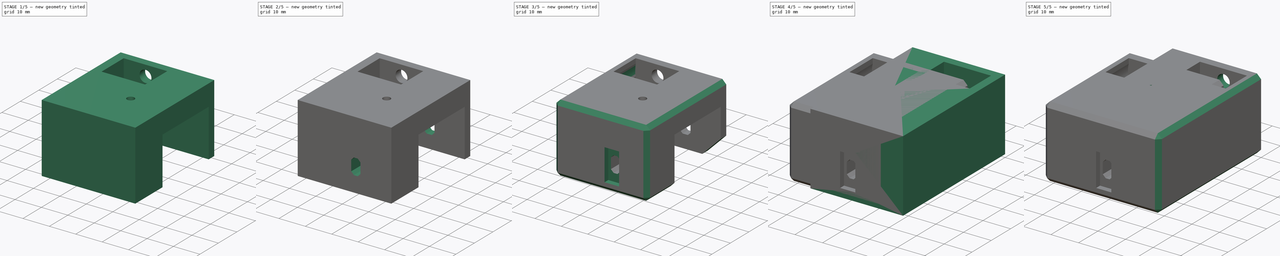
[diagram: build sequence overview — one tinted view per stage of 5, left to right]
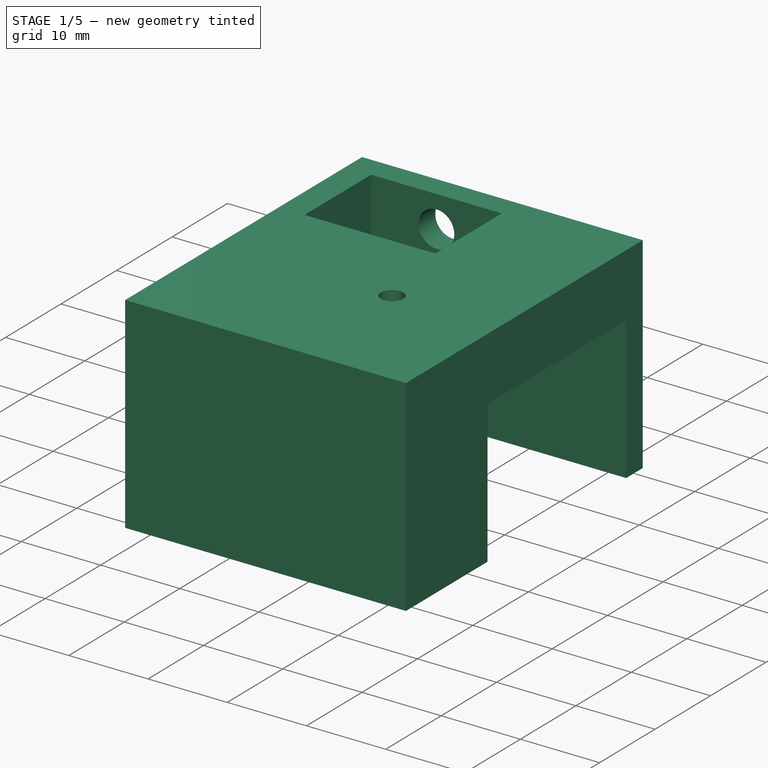
[diagram: stage 1 of 5 — iso view after this stage's code; geometry added in this stage tinted green]
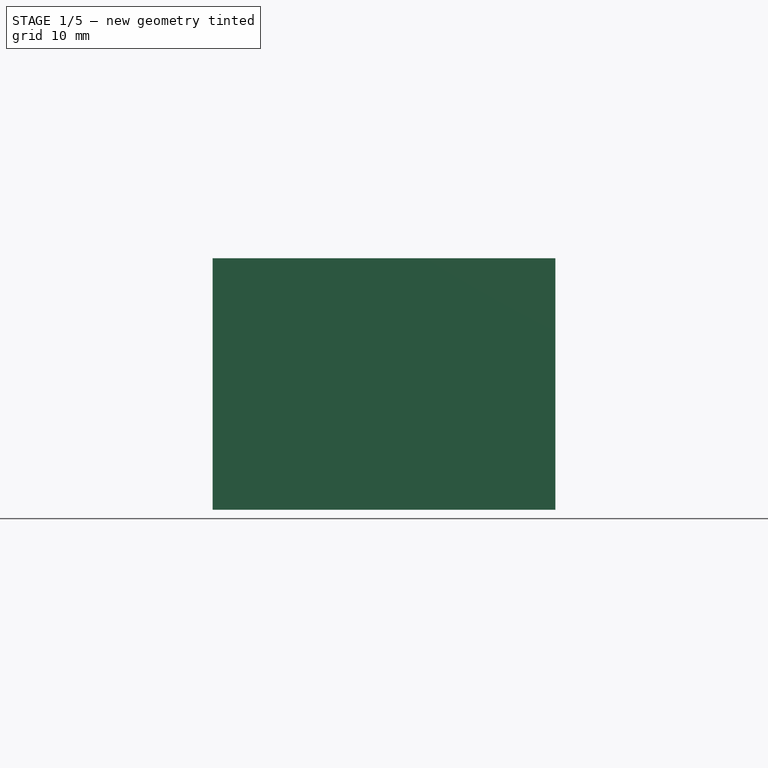
[diagram: stage 1 of 5 — front view after this stage's code; geometry added in this stage tinted green]
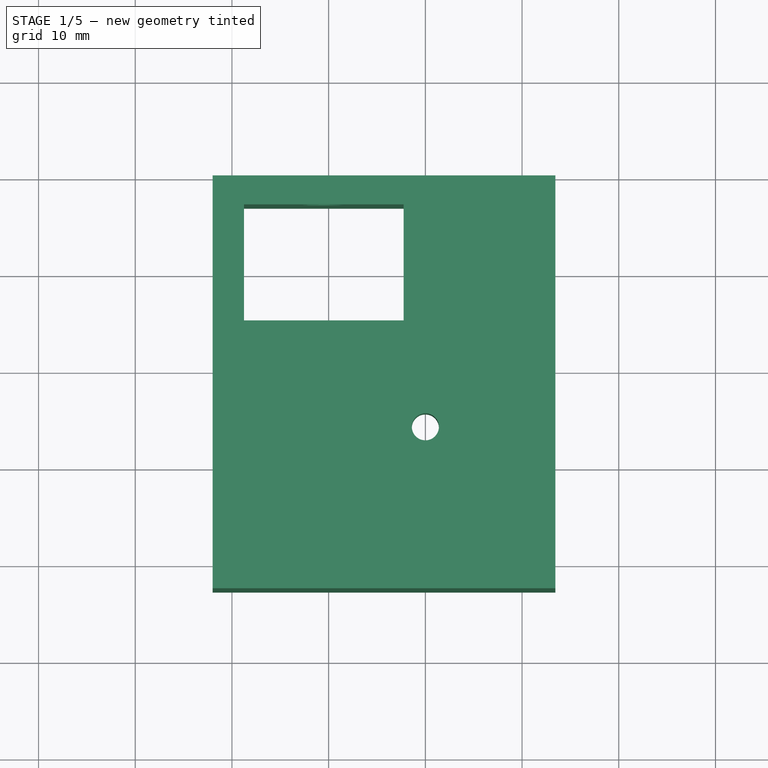
[diagram: stage 1 of 5 — top view after this stage's code; geometry added in this stage tinted green]
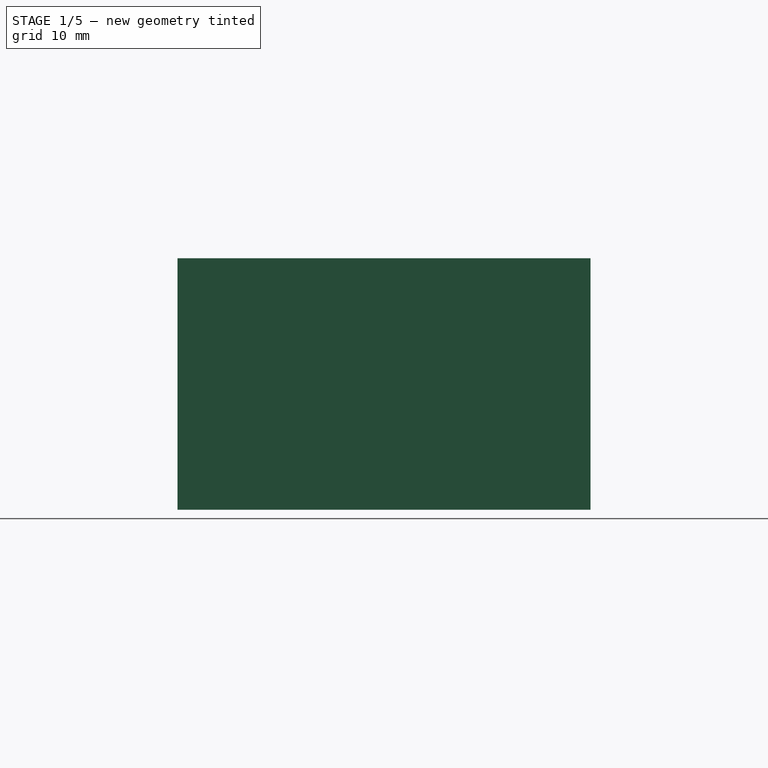
[diagram: stage 1 of 5 — right view after this stage's code; geometry added in this stage tinted green]
FCSTD DOCUMENT  (FreeCAD 0.19R)
Label: Tensioner_printed
License: All rights reserved
LicenseURL: http://en.wikipedia.org/wiki/All_rights_reserved
objects: Sketcher::SketchObject×27, PartDesign::Pocket×19, PartDesign::Pad×6, PartDesign::Chamfer×4, PartDesign::Body×2
note: 87 computed .brp shape members not serialized (recipe doc carries the construction recipe); baked Part::Feature solids carry a one-line shape summary decoded from their .brp

FEATURE [Sketcher::SketchObject] Sketch007  label="slots"
  FullyConstrained = true
  MapMode = 5
  Placement = pos=(0,40,0) rot=(0,0.707107,0.707107;3.14159rad)
  Support = -> [Pocket002]
  sketch-geometry (8):
    g0: LineSegment StartX=-1.75 StartY=-14 StartZ=0 EndX=-1.75 EndY=-19 EndZ=0
    g1: LineSegment StartX=1.75 StartY=-14 StartZ=0 EndX=1.75 EndY=-19 EndZ=0
    g2: LineSegment StartX=-1.75 StartY=-14 StartZ=0 EndX=-0.724874 EndY=-12.9749 EndZ=0
    g3: LineSegment StartX=-0.724874 StartY=-12.9749 StartZ=0 EndX=0.724874 EndY=-12.9749 EndZ=0
    g4: LineSegment StartX=0.724874 StartY=-12.9749 StartZ=0 EndX=1.75 EndY=-14 EndZ=0
    g5: LineSegment StartX=-1.75 StartY=-19 StartZ=0 EndX=-0.724874 EndY=-20.0251 EndZ=0
    g6: LineSegment StartX=-0.724874 StartY=-20.0251 StartZ=0 EndX=0.724874 EndY=-20.0251 EndZ=0
    g7: LineSegment StartX=0.724874 StartY=-20.0251 StartZ=0 EndX=1.75 EndY=-19 EndZ=0
  constraints (20):
    c: Vertical(g0)
    c: Coincident(g0,g2)
    c: Coincident(g2,g3)
    c: Coincident(g3,g4)
    c: Coincident(g4,g1)
    c: Coincident(g0,g5)
    c: Coincident(g5,g6)
    c: Coincident(g6,g7)
    c: Coincident(g7,g1)
    c: Equal(g2,g3)
    c: Equal(g4,g7)
    c: Equal(g7,g6)
    c: Symmetric(g1,g0,g-2)
    c: Symmetric(g3,g2,g-2)
    c: Symmetric(g0,g1,g-2)
    c: Symmetric(g6,g5,g-2)
    c: Distance(g1,g0) = 3.5
    c: Angle(g7) = 0.785398
    c: Distance(g1) = 5
    c: DistanceY(g1) = -14
FEATURE [Sketcher::SketchObject] Sketch008  label="pulleyWindown001"
  FullyConstrained = false
  MapMode = 5
  sketch-geometry (5):
    g0: LineSegment StartX=-18.75 StartY=27 StartZ=0 EndX=-2.25 EndY=27 EndZ=0
    g1: LineSegment StartX=-2.25 StartY=27 StartZ=0 EndX=-2.25 EndY=15 EndZ=0
    g2: LineSegment StartX=-2.25 StartY=15 StartZ=0 EndX=-18.75 EndY=15 EndZ=0
    g3: LineSegment StartX=-18.75 StartY=15 StartZ=0 EndX=-18.75 EndY=27 EndZ=0
    g4: LineSegment StartX=-10.5 StartY=41.4964 StartZ=0 EndX=-10.5 EndY=23.186 EndZ=0
  constraints (13):
    c: Coincident(g0,g1)
    c: Coincident(g1,g2)
    c: Coincident(g2,g3)
    c: Coincident(g3,g0)
    c: Horizontal(g0)
    c: Horizontal(g2)
    c: Vertical(g1)
    c: Vertical(g3)
    c: Distance(g0) = 16.5
    c: Distance(g1) = 12
    c: Symmetric(g0,g0,g4)
    c: DistanceY(g1) = 15
    c: DistanceX(g-2,g4) = -10.5
FEATURE [Sketcher::SketchObject] Sketch009
  FullyConstrained = false
  MapMode = 5
  Support = -> [XY_Plane002]
  sketch-geometry (26):
    g0: LineSegment StartX=-13.5 StartY=0 StartZ=0 EndX=13.5 EndY=0 EndZ=0
    g1: LineSegment StartX=13.5 StartY=0 StartZ=0 EndX=13.5 EndY=-12.7 EndZ=0
    g2: LineSegment StartX=13.5 StartY=-12.7 StartZ=0 EndX=-13.5 EndY=-12.7 EndZ=0
    g3: LineSegment StartX=-13.5 StartY=-12.7 StartZ=0 EndX=-13.5 EndY=0 EndZ=0
    g4: LineSegment StartX=-6 StartY=8 StartZ=0 EndX=6 EndY=8 EndZ=0
    g5: LineSegment StartX=6 StartY=8 StartZ=0 EndX=6 EndY=0 EndZ=0
    g6: LineSegment StartX=6 StartY=0 StartZ=0 EndX=-6 EndY=0 EndZ=0
    g7: LineSegment StartX=-6 StartY=0 StartZ=0 EndX=-6 EndY=8 EndZ=0
    g8: LineSegment StartX=-13.5 StartY=13 StartZ=0 EndX=13.5 EndY=13 EndZ=0
    g9: LineSegment StartX=13.5 StartY=13 StartZ=0 EndX=13.5 EndY=3 EndZ=0
    g10: LineSegment StartX=-13.5 StartY=3 StartZ=0 EndX=-13.5 EndY=13 EndZ=0
    g11: LineSegment StartX=13.5 StartY=3 StartZ=0 EndX=6 EndY=3 EndZ=0
    g12: LineSegment StartX=6 StartY=3 StartZ=0 EndX=6 EndY=8 EndZ=0
    g13: LineSegment StartX=6 StartY=8 StartZ=0 EndX=-6 EndY=8 EndZ=0
    g14: LineSegment StartX=-6 StartY=8 StartZ=0 EndX=-6 EndY=3 EndZ=0
    g15: LineSegment StartX=-6 StartY=3 StartZ=0 EndX=-13.5 EndY=3 EndZ=0
    g16: LineSegment StartX=-6 StartY=8 StartZ=0 EndX=6 EndY=8 EndZ=0
    g17: LineSegment StartX=-15.5 StartY=26 StartZ=0 EndX=15.5 EndY=26 EndZ=0
    g18: LineSegment StartX=15.5 StartY=26 StartZ=0 EndX=15.5 EndY=13 EndZ=0
    g19: LineSegment StartX=15.5 StartY=13 StartZ=0 EndX=-15.5 EndY=13 EndZ=0
    g20: LineSegment StartX=-15.5 StartY=13 StartZ=0 EndX=-15.5 EndY=26 EndZ=0
    g21: LineSegment StartX=-17.85 StartY=25.5 StartZ=0 EndX=-4.15 EndY=25.5 EndZ=0
    g22: LineSegment StartX=-4.15 StartY=25.5 StartZ=0 EndX=-4.15 EndY=18.5 EndZ=0
    g23: LineSegment StartX=-4.15 StartY=18.5 StartZ=0 EndX=-17.85 EndY=18.5 EndZ=0
    g24: LineSegment StartX=-17.85 StartY=18.5 StartZ=0 EndX=-17.85 EndY=25.5 EndZ=0
    g25: LineSegment StartX=-11 StartY=34.6127 StartZ=0 EndX=-11 EndY=22.2988 EndZ=0
  constraints (69):
    c: Coincident(g0,g1)
    c: Coincident(g1,g2)
    c: Coincident(g2,g3)
    c: Coincident(g3,g0)
    c: Horizontal(g2)
    c: Vertical(g1)
    c: Vertical(g3)
    c: Symmetric(g0,g0,g-2)
    c: Distance(g0) = 27
    c: Distance(g1) = 12.7
    c: PointOnObject(g0,g-1)
    c: Coincident(g4,g5)
    c: Coincident(g5,g6)
    c: Coincident(g6,g7)
    c: Coincident(g7,g4)
    c: Horizontal(g6)
    c: Vertical(g5)
    c: Vertical(g7)
    c: Distance(g4) = 12
    c: Symmetric(g4,g4,g-2)
    c: PointOnObject(g5,g0)
    c: Distance(g5) = 8
    c: Coincident(g8,g9)
    c: Coincident(g10,g8)
    c: Vertical(g9)
    c: Vertical(g10)
    c: Distance(g8) = 27
    c: Symmetric(g8,g8,g-2)
    c: Coincident(g9,g11)
    c: Horizontal(g11)
    c: Coincident(g11,g12)
    c: Coincident(g12,g4)
    c: Coincident(g12,g13)
    c: Coincident(g13,g4)
    c: Coincident(g13,g14)
    c: Vertical(g14)
    c: Coincident(g14,g15)
    c: Coincident(g10,g15)
    c: Vertical(g12)
    c: Horizontal(g15)
    c: Distance(g9) = 10
    c: Equal(g10,g9)
    c: Horizontal(g16)
    c: Coincident(g16,g4)
    c: Coincident(g17,g18)
    c: Coincident(g18,g19)
    c: Coincident(g19,g20)
    c: Coincident(g20,g17)
    c: Horizontal(g19)
    c: Vertical(g18)
    c: Vertical(g20)
    c: Distance(g17) = 31
    c: Distance(g18) = 13
    c: PointOnObject(g8,g19)
    c: Symmetric(g17,g17,g-2)
    c: Coincident(g21,g22)
    c: Coincident(g22,g23)
    c: Coincident(g23,g24)
    c: Coincident(g24,g21)
    c: Horizontal(g21)
    c: Horizontal(g23)
    c: Vertical(g22)
    c: Vertical(g24)
    c: Distance(g21) = 13.7
    c: Symmetric(g21,g21,g25)
    c: Distance(g24) = 7
    c: Distance(g21,g17) = 0.5
    c: DistanceY(g-1,g8) = 13
    c: DistanceX(g25,g14) = 5
FEATURE [Sketcher::SketchObject] Sketch010  label="axle001"
  FullyConstrained = true
  MapMode = 5
  Placement = pos=(0,33,0) rot=(0,0.707107,0.707107;3.14159rad)
  sketch-geometry (1):
    g0: Circle CenterX=10.5 CenterY=-4 CenterZ=0 NormalX=0 NormalY=0 NormalZ=1 AngleXU=0 Radius=2.25
  constraints (3):
    c: Diameter(g0) = 4.5
    c: DistanceX(g0) = 10.5
    c: DistanceY(g0) = -4
FEATURE [Sketcher::SketchObject] Sketch011  label="jackscrews001"
  FullyConstrained = true
  MapMode = 5
  Placement = pos=(0,0,-10) rot=(1,0,0;3.14159rad)
  sketch-geometry (1):
    g0: Circle CenterX=0 CenterY=-4 CenterZ=0 NormalX=0 NormalY=0 NormalZ=1 AngleXU=0 Radius=1.4
  constraints (3):
    c: Diameter(g0) = 2.8
    c: PointOnObject(g0,g-2)
    c: DistanceY(g0) = -4
FEATURE [Sketcher::SketchObject] Sketch012
  FullyConstrained = false
  MapMode = 5
  Support = -> [XY_Plane002]
  sketch-geometry (4):
    g0: LineSegment StartX=-22 StartY=-12.7 StartZ=0 EndX=13.4449 EndY=-12.7 EndZ=0
    g1: LineSegment StartX=13.4449 StartY=-12.7 StartZ=0 EndX=13.4449 EndY=30 EndZ=0
    g2: LineSegment StartX=13.4449 StartY=30 StartZ=0 EndX=-22 EndY=30 EndZ=0
    g3: LineSegment StartX=-22 StartY=30 StartZ=0 EndX=-22 EndY=-12.7 EndZ=0
  constraints (11):
    c: Coincident(g0,g1)
    c: Coincident(g1,g2)
    c: Coincident(g2,g3)
    c: Coincident(g3,g0)
    c: Horizontal(g2)
    c: Vertical(g1)
    c: Vertical(g3)
    c: DistanceY(g1) = 30
    c: Horizontal(g0)
    c: DistanceY(g0) = -12.7
    c: DistanceX(g-2,g2) = -22
FEATURE [PartDesign::Pad] Pad001
  Direction = (1,1,1)
  Length = 26
  Length2 = 100
  Profile = -> Sketch012
  Reversed = true
  Type = 0
FEATURE [Sketcher::SketchObject] Sketch013  label="mainNotch001"
  FullyConstrained = false
  MapMode = 5
  Placement = pos=(0,0,-26) rot=(1,0,0;3.14159rad)
  Support = -> [Pad001]
  sketch-geometry (6):
    g0: LineSegment StartX=-19 StartY=-2 StartZ=0 EndX=19 EndY=-2 EndZ=0
    g1: LineSegment StartX=17 StartY=-27 StartZ=0 EndX=-19 EndY=-27 EndZ=0
    g2: LineSegment StartX=-19 StartY=-27 StartZ=0 EndX=-19 EndY=-2 EndZ=0
    g3: LineSegment StartX=19 StartY=-2 StartZ=0 EndX=19 EndY=-2 EndZ=0
    g4: LineSegment StartX=19 StartY=-2 StartZ=0 EndX=17 EndY=-2 EndZ=0
    g5: LineSegment StartX=17 StartY=-2 StartZ=0 EndX=17 EndY=-27 EndZ=0
  constraints (16):
    c: Coincident(g1,g2)
    c: Coincident(g2,g0)
    c: Horizontal(g1)
    c: Vertical(g2)
    c: DistanceY(g0) = -2
    c: Symmetric(g0,g0,g-2)
    c: DistanceY(g1) = -27
    c: Coincident(g0,g3)
    c: Vertical(g3)
    c: Coincident(g3,g4)
    c: Coincident(g4,g5)
    c: Vertical(g5)
    c: Coincident(g1,g5)
    c: Horizontal(g4)
    c: DistanceY(g3) = -2
    c: DistanceX(g0,g-1) = 19
FEATURE [Sketcher::SketchObject] Sketch014  label="rail001"
  FullyConstrained = true
  MapMode = 5
  Placement = pos=(0,0,-35) rot=(1,0,0;3.14159rad)
  sketch-geometry (4):
    g0: LineSegment StartX=-6.15 StartY=1 StartZ=0 EndX=6.15 EndY=1 EndZ=0
    g1: LineSegment StartX=6.15 StartY=1 StartZ=0 EndX=6.15 EndY=-15 EndZ=0
    g2: LineSegment StartX=6.15 StartY=-15 StartZ=0 EndX=-6.15 EndY=-15 EndZ=0
    g3: LineSegment StartX=-6.15 StartY=-15 StartZ=0 EndX=-6.15 EndY=1 EndZ=0
  constraints (11):
    c: Coincident(g0,g1)
    c: Coincident(g1,g2)
    c: Coincident(g2,g3)
    c: Coincident(g3,g0)
    c: Horizontal(g2)
    c: Vertical(g1)
    c: Vertical(g3)
    c: Symmetric(g0,g0,g-2)
    c: Distance(g0) = 12.3
    c: DistanceY(g1,g1) = 16
    c: DistanceY(g0) = 1
FEATURE [Sketcher::SketchObject] Sketch015  label="slots001"
  FullyConstrained = true
  MapMode = 5
  Placement = pos=(0,40,0) rot=(0,0.707107,0.707107;3.14159rad)
  Support = -> [Pocket002]
  sketch-geometry (8):
    g0: LineSegment StartX=-1.75 StartY=-15 StartZ=0 EndX=-1.75 EndY=-19 EndZ=0
    g1: LineSegment StartX=1.75 StartY=-15 StartZ=0 EndX=1.75 EndY=-19 EndZ=0
    g2: LineSegment StartX=-1.75 StartY=-15 StartZ=0 EndX=-0.724874 EndY=-13.9749 EndZ=0
    g3: LineSegment StartX=-0.724874 StartY=-13.9749 StartZ=0 EndX=0.724874 EndY=-13.9749 EndZ=0
    g4: LineSegment StartX=0.724874 StartY=-13.9749 StartZ=0 EndX=1.75 EndY=-15 EndZ=0
    g5: LineSegment StartX=1.75 StartY=-19 StartZ=0 EndX=0.724874 EndY=-20.0251 EndZ=0
    g6: LineSegment StartX=0.724874 StartY=-20.0251 StartZ=0 EndX=-0.724874 EndY=-20.0251 EndZ=0
    g7: LineSegment StartX=-0.724874 StartY=-20.0251 StartZ=0 EndX=-1.75 EndY=-19 EndZ=0
  constraints (21):
    c: Vertical(g0)
    c: Coincident(g0,g2)
    c: Coincident(g2,g3)
    c: Horizontal(g3)
    c: Coincident(g3,g4)
    c: Coincident(g4,g1)
    c: Coincident(g1,g5)
    c: Coincident(g5,g6)
    c: Coincident(g6,g7)
    c: Coincident(g7,g0)
    c: DistanceY(g1) = -19
    c: Distance(g1) = 4
    c: Equal(g2,g3)
    c: Equal(g3,g4)
    c: Equal(g4,g5)
    c: Equal(g5,g6)
    c: Symmetric(g1,g0,g-2)
    c: Distance(g1,g0) = 3.5
    c: Symmetric(g5,g6,g-2)
    c: Symmetric(g1,g0,g-2)
    c: Angle(g4) = -0.785398
FEATURE [PartDesign::Pocket] Pocket006
  BaseFeature = -> Pad001
  Length = 18
  Length2 = 100
  Profile = -> Sketch013
  Type = 0
FEATURE [PartDesign::Pocket] Pocket007
  BaseFeature = -> Pocket006
  Length = 5
  Length2 = 100
  Profile = -> Sketch008
  Type = 1
FEATURE [PartDesign::Pocket] Pocket008
  BaseFeature = -> Pocket007
  Length = 30
  Length2 = 100
  Profile = -> Sketch010
  Type = 0
FEATURE [PartDesign::Pocket] Pocket009
  BaseFeature = -> Pocket008
  Length = 27
  Length2 = 100
  Profile = -> Sketch014
  Type = 0
FEATURE [PartDesign::Pocket] Pocket010
  BaseFeature = -> Pocket009
  Length = 5
  Length2 = 100
  Profile = -> Sketch011
  Type = 1
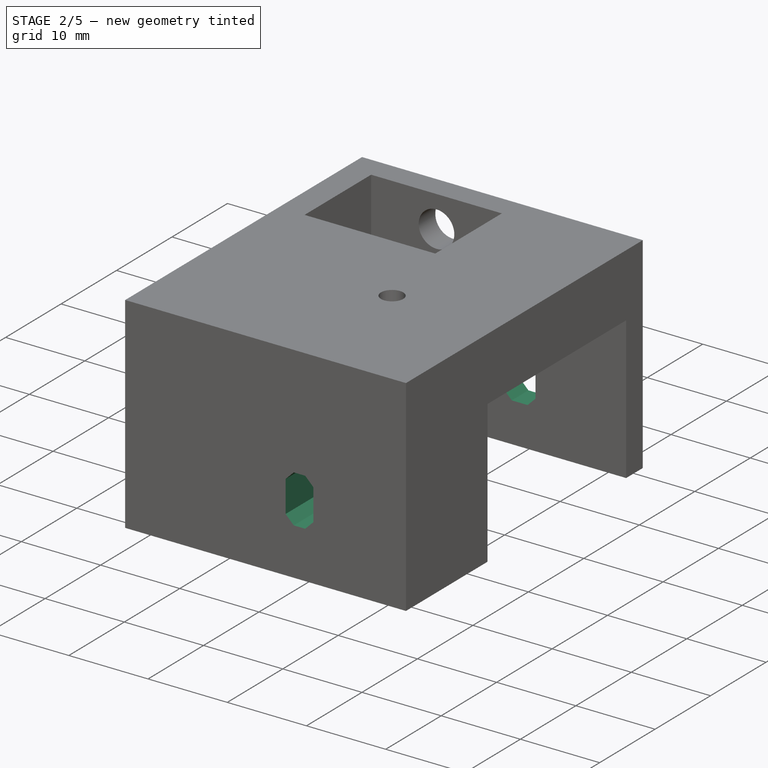
[diagram: stage 2 of 5 — iso view after this stage's code; geometry added in this stage tinted green]
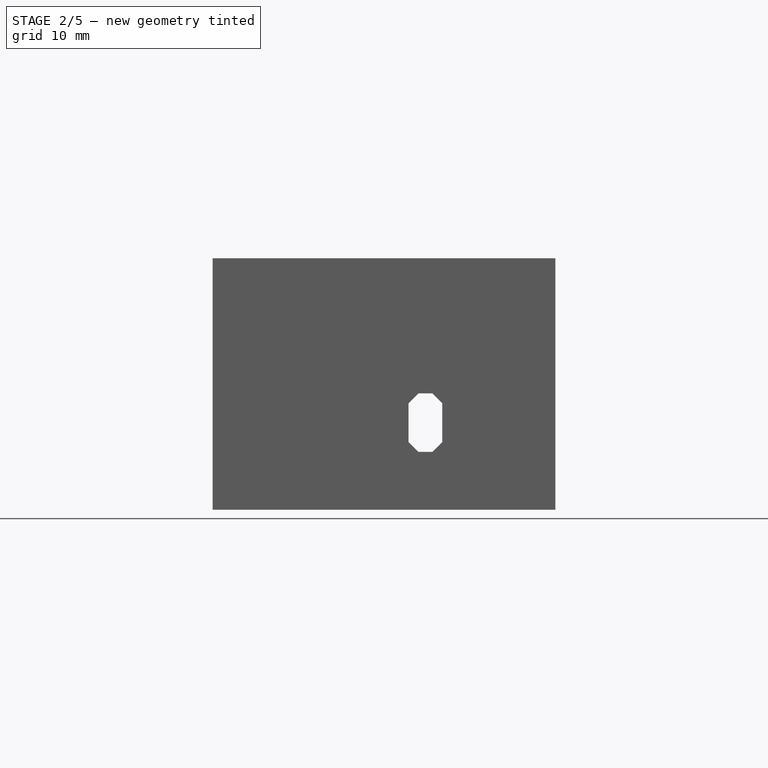
[diagram: stage 2 of 5 — front view after this stage's code; geometry added in this stage tinted green]
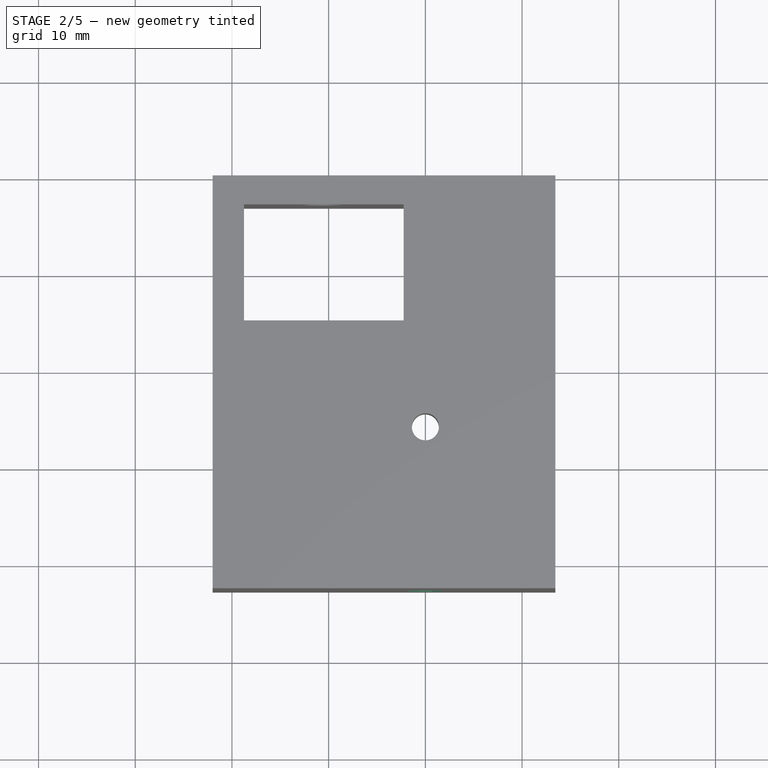
[diagram: stage 2 of 5 — top view after this stage's code; geometry added in this stage tinted green]
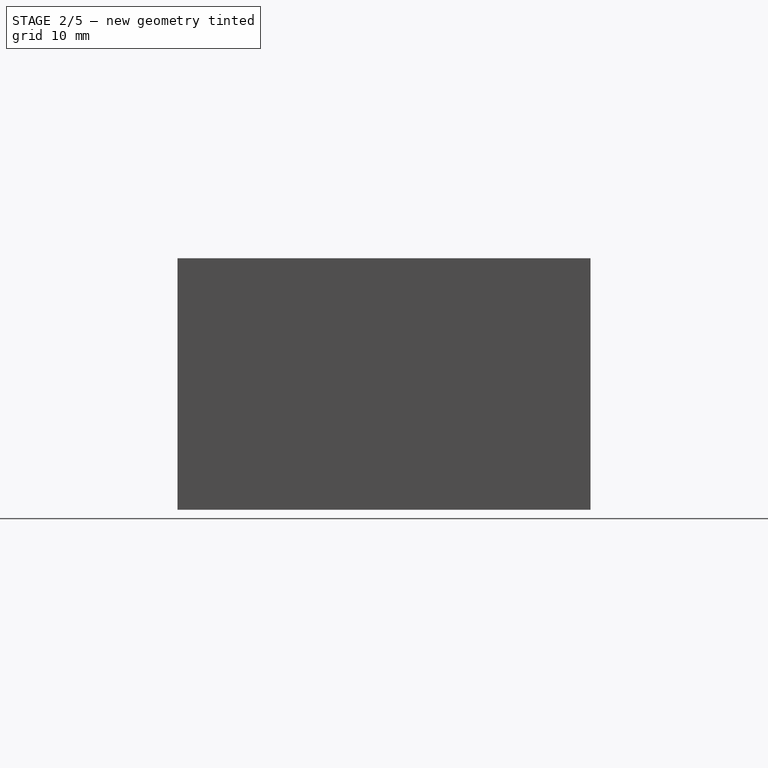
[diagram: stage 2 of 5 — right view after this stage's code; geometry added in this stage tinted green]
FEATURE [Sketcher::SketchObject] Sketch
  FullyConstrained = false
  MapMode = 5
  Support = -> [XY_Plane]
  sketch-geometry (29):
    g0: LineSegment StartX=-13.5 StartY=0 StartZ=0 EndX=13.5 EndY=0 EndZ=0
    g1: LineSegment StartX=13.5 StartY=0 StartZ=0 EndX=13.5 EndY=-12.7 EndZ=0
    g2: LineSegment StartX=13.5 StartY=-12.7 StartZ=0 EndX=-13.5 EndY=-12.7 EndZ=0
    g3: LineSegment StartX=-13.5 StartY=-12.7 StartZ=0 EndX=-13.5 EndY=0 EndZ=0
    g4: LineSegment StartX=-6 StartY=8 StartZ=0 EndX=6 EndY=8 EndZ=0
    g5: LineSegment StartX=6 StartY=8 StartZ=0 EndX=6 EndY=0 EndZ=0
    g6: LineSegment StartX=6 StartY=0 StartZ=0 EndX=-6 EndY=0 EndZ=0
    g7: LineSegment StartX=-6 StartY=0 StartZ=0 EndX=-6 EndY=8 EndZ=0
    g8: LineSegment StartX=-13.5 StartY=21 StartZ=0 EndX=13.5 EndY=21 EndZ=0
    g9: LineSegment StartX=13.5 StartY=21 StartZ=0 EndX=13.5 EndY=11 EndZ=0
    g10: LineSegment StartX=-13.5 StartY=11 StartZ=0 EndX=-13.5 EndY=21 EndZ=0
    g11: LineSegment StartX=13.5 StartY=11 StartZ=0 EndX=6 EndY=11 EndZ=0
    g12: LineSegment StartX=6 StartY=11 StartZ=0 EndX=6 EndY=8 EndZ=0
    g13: LineSegment StartX=6 StartY=8 StartZ=0 EndX=-6 EndY=8 EndZ=0
    g14: LineSegment StartX=-6 StartY=8 StartZ=0 EndX=-6 EndY=11 EndZ=0
    g15: LineSegment StartX=-6 StartY=11 StartZ=0 EndX=-13.5 EndY=11 EndZ=0
    g16: LineSegment StartX=-6 StartY=8 StartZ=0 EndX=6 EndY=8 EndZ=0
    g17: LineSegment StartX=6 StartY=8 StartZ=0 EndX=6 EndY=16 EndZ=0
    g18: LineSegment StartX=6 StartY=16 StartZ=0 EndX=-6 EndY=16 EndZ=0
    g19: LineSegment StartX=-6 StartY=16 StartZ=0 EndX=-6 EndY=8 EndZ=0
    g20: LineSegment StartX=-15.5 StartY=37 StartZ=0 EndX=15.5 EndY=37 EndZ=0
    g21: LineSegment StartX=15.5 StartY=37 StartZ=0 EndX=15.5 EndY=21 EndZ=0
    g22: LineSegment StartX=15.5 StartY=21 StartZ=0 EndX=-15.5 EndY=21 EndZ=0
    g23: LineSegment StartX=-15.5 StartY=21 StartZ=0 EndX=-15.5 EndY=37 EndZ=0
    g24: LineSegment StartX=1.65 StartY=36.5 StartZ=0 EndX=15.35 EndY=36.5 EndZ=0
    g25: LineSegment StartX=15.35 StartY=36.5 StartZ=0 EndX=15.35 EndY=29.5 EndZ=0
    g26: LineSegment StartX=15.35 StartY=29.5 StartZ=0 EndX=1.65 EndY=29.5 EndZ=0
    g27: LineSegment StartX=1.65 StartY=29.5 StartZ=0 EndX=1.65 EndY=36.5 EndZ=0
    g28: LineSegment StartX=8.5 StartY=38.8523 StartZ=0 EndX=8.5 EndY=26.5432 EndZ=0
  constraints (78):
    c: Coincident(g0,g1)
    c: Coincident(g1,g2)
    c: Coincident(g2,g3)
    c: Coincident(g3,g0)
    c: Horizontal(g2)
    c: Vertical(g1)
    c: Vertical(g3)
    c: Symmetric(g0,g0,g-2)
    c: Distance(g0) = 27
    c: Distance(g1) = 12.7
    c: PointOnObject(g0,g-1)
    c: Coincident(g4,g5)
    c: Coincident(g5,g6)
    c: Coincident(g6,g7)
    c: Coincident(g7,g4)
    c: Horizontal(g6)
    c: Vertical(g5)
    c: Vertical(g7)
    c: Distance(g4) = 12
    c: Symmetric(g4,g4,g-2)
    c: PointOnObject(g5,g0)
    c: Distance(g5) = 8
    c: Coincident(g8,g9)
    c: Coincident(g10,g8)
    c: Vertical(g9)
    c: Vertical(g10)
    c: Distance(g8) = 27
    c: Symmetric(g8,g8,g-2)
    c: Coincident(g9,g11)
    c: Horizontal(g11)
    c: Coincident(g11,g12)
    c: Coincident(g12,g4)
    c: Coincident(g12,g13)
    c: Coincident(g13,g4)
    c: Coincident(g13,g14)
    c: Vertical(g14)
    c: Coincident(g14,g15)
    c: Coincident(g10,g15)
    c: Distance(g13,g8) = 13
    c: Vertical(g12)
    c: Horizontal(g15)
    c: Distance(g9) = 10
    c: Equal(g10,g9)
    c: Coincident(g16,g17)
    c: Coincident(g17,g18)
    c: Coincident(g18,g19)
    c: Coincident(g19,g16)
    c: Horizontal(g16)
    c: Horizontal(g18)
    c: Vertical(g17)
    c: Vertical(g19)
    c: Coincident(g16,g4)
    c: Distance(g17) = 8
    c: Distance(g18) = 12
    c: Coincident(g20,g21)
    c: Coincident(g21,g22)
    c: Coincident(g22,g23)
    c: Coincident(g23,g20)
    c: Horizontal(g22)
    c: Vertical(g21)
    c: Vertical(g23)
    c: Distance(g20) = 31
    c: Distance(g21) = 16
    c: PointOnObject(g8,g22)
    c: Symmetric(g20,g20,g-2)
    c: Coincident(g24,g25)
    c: Coincident(g25,g26)
    c: Coincident(g26,g27)
    c: Coincident(g27,g24)
    c: Horizontal(g24)
    c: Horizontal(g26)
    c: Vertical(g25)
    c: Vertical(g27)
    c: Distance(g24) = 13.7
    c: Symmetric(g24,g24,g28)
    c: DistanceX(g28,g0) = 5
    c: Distance(g27) = 7
    c: Distance(g24,g20) = 0.5
FEATURE [Sketcher::SketchObject] Sketch001
  FullyConstrained = true
  MapMode = 5
  Support = -> [XY_Plane]
  sketch-geometry (4):
    g0: LineSegment StartX=-13.5 StartY=-12.7 StartZ=0 EndX=20 EndY=-12.7 EndZ=0
    g1: LineSegment StartX=20 StartY=-12.7 StartZ=0 EndX=20 EndY=40 EndZ=0
    g2: LineSegment StartX=20 StartY=40 StartZ=0 EndX=-13.5 EndY=40 EndZ=0
    g3: LineSegment StartX=-13.5 StartY=40 StartZ=0 EndX=-13.5 EndY=-12.7 EndZ=0
  constraints (12):
    c: Coincident(g0,g1)
    c: Coincident(g1,g2)
    c: Coincident(g2,g3)
    c: Coincident(g3,g0)
    c: Horizontal(g2)
    c: Vertical(g1)
    c: Vertical(g3)
    c: DistanceX(g1) = 20
    c: DistanceY(g1) = 40
    c: DistanceX(g0) = -13.5
    c: Horizontal(g0)
    c: DistanceY(g0) = -12.7
FEATURE [PartDesign::Pad] Pad
  Direction = (1,1,1)
  Length = 26
  Length2 = 100
  Profile = -> Sketch001
  Reversed = true
  Type = 0
FEATURE [Sketcher::SketchObject] Sketch002  label="mainNotch"
  FullyConstrained = true
  MapMode = 5
  Placement = pos=(0,0,-26) rot=(1,0,0;3.14159rad)
  Support = -> [Pad]
  sketch-geometry (6):
    g0: LineSegment StartX=-15 StartY=-10 StartZ=0 EndX=15 EndY=-10 EndZ=0
    g1: LineSegment StartX=17 StartY=-37 StartZ=0 EndX=-15 EndY=-37 EndZ=0
    g2: LineSegment StartX=-15 StartY=-37 StartZ=0 EndX=-15 EndY=-10 EndZ=0
    g3: LineSegment StartX=15 StartY=-10 StartZ=0 EndX=15 EndY=-10 EndZ=0
    g4: LineSegment StartX=15 StartY=-10 StartZ=0 EndX=17 EndY=-10 EndZ=0
    g5: LineSegment StartX=17 StartY=-10 StartZ=0 EndX=17 EndY=-37 EndZ=0
  constraints (17):
    c: Coincident(g1,g2)
    c: Coincident(g2,g0)
    c: Horizontal(g1)
    c: Vertical(g2)
    c: DistanceY(g0) = -10
    c: Symmetric(g0,g0,g-2)
    c: DistanceY(g1) = -37
    c: Coincident(g0,g3)
    c: Vertical(g3)
    c: Coincident(g3,g4)
    c: Coincident(g4,g5)
    c: Vertical(g5)
    c: Coincident(g1,g5)
    c: DistanceX(g0) = 15
    c: Horizontal(g4)
    c: DistanceX(g4) = 17
    c: DistanceY(g3) = -10
FEATURE [Sketcher::SketchObject] Sketch003  label="pulleyWindown"
  FullyConstrained = false
  MapMode = 5
  sketch-geometry (5):
    g0: LineSegment StartX=-6e-16 StartY=37 StartZ=0 EndX=17 EndY=37 EndZ=0
    g1: LineSegment StartX=17 StartY=37 StartZ=0 EndX=17 EndY=26 EndZ=0
    g2: LineSegment StartX=17 StartY=26 StartZ=0 EndX=0 EndY=26 EndZ=0
    g3: LineSegment StartX=-6e-16 StartY=26 StartZ=0 EndX=-6e-16 EndY=37 EndZ=0
    g4: LineSegment StartX=8.5 StartY=42.5886 StartZ=0 EndX=8.5 EndY=24.2761 EndZ=0
  constraints (13):
    c: Coincident(g0,g1)
    c: Coincident(g1,g2)
    c: Coincident(g2,g3)
    c: Coincident(g3,g0)
    c: Horizontal(g0)
    c: Horizontal(g2)
    c: Vertical(g1)
    c: Vertical(g3)
    c: Distance(g0) = 17
    c: Distance(g1) = 11
    c: Symmetric(g0,g0,g4)
    c: DistanceX(g4) = 8.5
    c: DistanceY(g0) = 37
FEATURE [Sketcher::SketchObject] Sketch004  label="rail"
  FullyConstrained = true
  MapMode = 5
  Placement = pos=(0,0,-35) rot=(1,0,0;3.14159rad)
  sketch-geometry (4):
    g0: LineSegment StartX=-6.15 StartY=0 StartZ=0 EndX=6.15 EndY=0 EndZ=0
    g1: LineSegment StartX=6.15 StartY=0 StartZ=0 EndX=6.15 EndY=-16 EndZ=0
    g2: LineSegment StartX=6.15 StartY=-16 StartZ=0 EndX=-6.15 EndY=-16 EndZ=0
    g3: LineSegment StartX=-6.15 StartY=-16 StartZ=0 EndX=-6.15 EndY=0 EndZ=0
  constraints (11):
    c: Coincident(g0,g1)
    c: Coincident(g1,g2)
    c: Coincident(g2,g3)
    c: Coincident(g3,g0)
    c: Horizontal(g2)
    c: Vertical(g1)
    c: Vertical(g3)
    c: Symmetric(g0,g0,g-2)
    c: Distance(g0) = 12.3
    c: PointOnObject(g0,g-1)
    c: DistanceY(g1,g1) = 16
FEATURE [Sketcher::SketchObject] Sketch005  label="axle"
  FullyConstrained = true
  MapMode = 5
  Placement = pos=(0,40,0) rot=(0,0.707107,0.707107;3.14159rad)
  sketch-geometry (1):
    g0: Circle CenterX=-8.5 CenterY=-4 CenterZ=0 NormalX=0 NormalY=0 NormalZ=1 AngleXU=0 Radius=2.25
  constraints (3):
    c: Diameter(g0) = 4.5
    c: DistanceX(g0) = -8.5
    c: DistanceY(g0) = -4
FEATURE [Sketcher::SketchObject] Sketch006  label="jackscrews"
  FullyConstrained = true
  MapMode = 5
  Placement = pos=(0,0,-10) rot=(1,0,0;3.14159rad)
  sketch-geometry (1):
    g0: Circle CenterX=0 CenterY=-13 CenterZ=0 NormalX=0 NormalY=0 NormalZ=1 AngleXU=0 Radius=1.4
  constraints (3):
    c: Diameter(g0) = 2.8
    c: PointOnObject(g0,g-2)
    c: DistanceY(g0) = -13
FEATURE [PartDesign::Pocket] Pocket
  BaseFeature = -> Pad
  Length = 18
  Length2 = 100
  Profile = -> Sketch002
  Type = 0
FEATURE [PartDesign::Pocket] Pocket001
  BaseFeature = -> Pocket
  Length = 5
  Length2 = 100
  Profile = -> Sketch003
  Type = 1
FEATURE [PartDesign::Pocket] Pocket002
  BaseFeature = -> Pocket001
  Length = 27
  Length2 = 100
  Profile = -> Sketch004
  Type = 0
FEATURE [PartDesign::Pocket] Pocket011
  BaseFeature = -> Pocket010
  Length = 5
  Length2 = 100
  Profile = -> Sketch015
  Type = 1
FEATURE [Sketcher::SketchObject] Sketch020  label="wrenchslot"
  FullyConstrained = true
  MapMode = 5
  Placement = pos=(0,30,0) rot=(0,0.707107,0.707107;3.14159rad)
  Support = -> [Pocket011]
  sketch-geometry (8):
    g0: LineSegment StartX=-2 StartY=-14 StartZ=0 EndX=-2 EndY=-20 EndZ=0
    g1: LineSegment StartX=-2 StartY=-20 StartZ=0 EndX=-1 EndY=-21 EndZ=0
    g2: LineSegment StartX=-1 StartY=-21 StartZ=0 EndX=1 EndY=-21 EndZ=0
    g3: LineSegment StartX=1 StartY=-21 StartZ=0 EndX=2 EndY=-20 EndZ=0
    g4: LineSegment StartX=2 StartY=-20 StartZ=0 EndX=2 EndY=-14 EndZ=0
    g5: LineSegment StartX=2 StartY=-14 StartZ=0 EndX=1 EndY=-13 EndZ=0
    g6: LineSegment StartX=1 StartY=-13 StartZ=0 EndX=-1 EndY=-13 EndZ=0
    g7: LineSegment StartX=-1 StartY=-13 StartZ=0 EndX=-2 EndY=-14 EndZ=0
  constraints (22):
    c: Vertical(g0)
    c: Coincident(g0,g1)
    c: Coincident(g1,g2)
    c: Coincident(g2,g3)
    c: Coincident(g3,g4)
    c: Coincident(g4,g5)
    c: Coincident(g5,g6)
    c: Horizontal(g6)
    c: Coincident(g6,g7)
    c: Coincident(g7,g0)
    c: Symmetric(g4,g0,g-2)
    c: Vertical(g4)
    c: Equal(g5,g7)
    c: Equal(g7,g1)
    c: Equal(g1,g3)
    c: Symmetric(g2,g1,g-2)
    c: Angle(g3) = 0.785398
    c: Angle(g5) = 2.35619
    c: Distance(g3,g0) = 4
    c: DistanceY(g3) = -20
    c: DistanceY(g4) = -14
    c: Distance(g6) = 2
FEATURE [PartDesign::Pocket] Pocket017
  BaseFeature = -> Pocket011
  Length = 5
  Length2 = 100
  Profile = -> Sketch020
  Type = 0
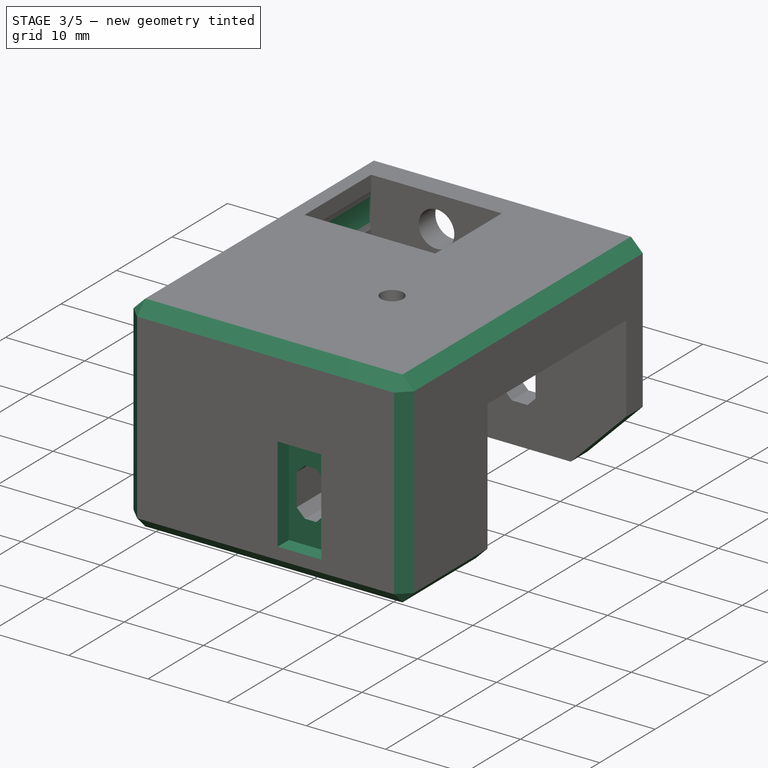
[diagram: stage 3 of 5 — iso view after this stage's code; geometry added in this stage tinted green]
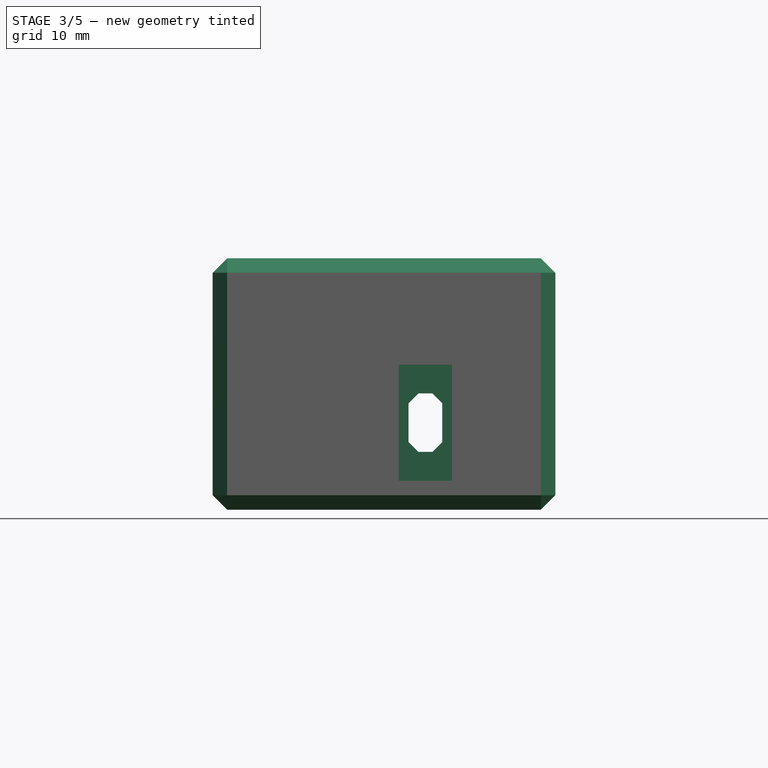
[diagram: stage 3 of 5 — front view after this stage's code; geometry added in this stage tinted green]
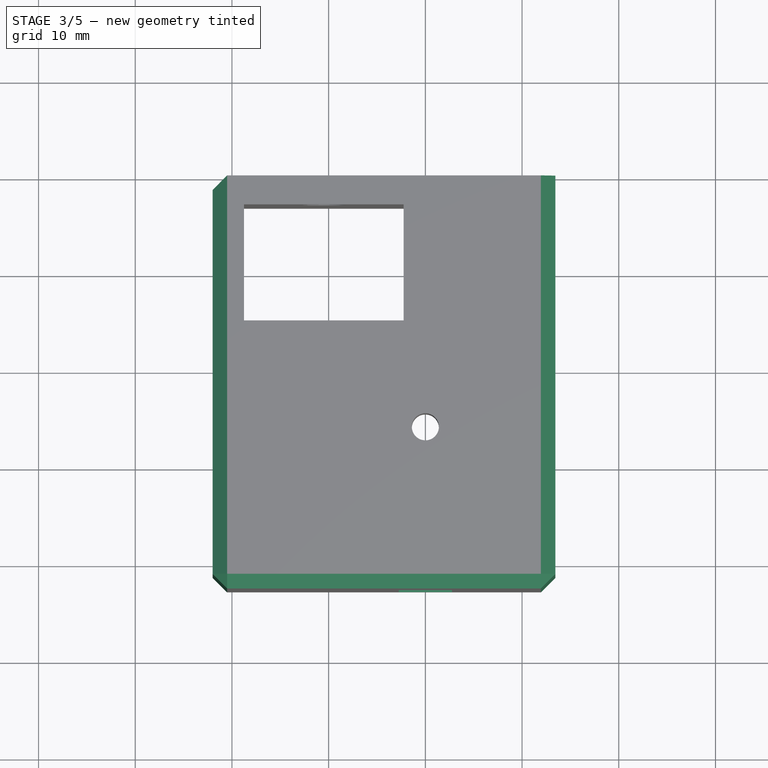
[diagram: stage 3 of 5 — top view after this stage's code; geometry added in this stage tinted green]
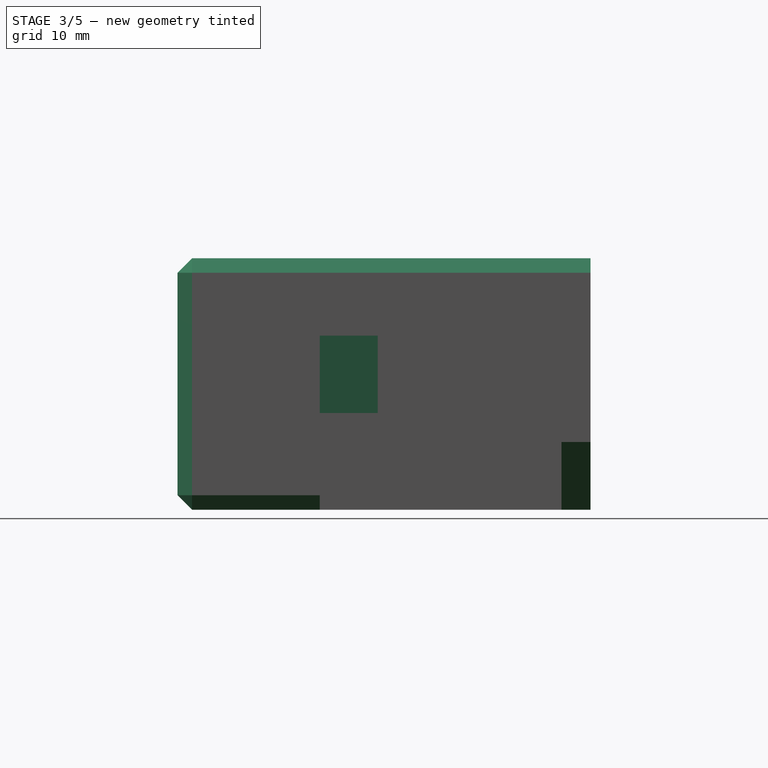
[diagram: stage 3 of 5 — right view after this stage's code; geometry added in this stage tinted green]
FEATURE [Sketcher::SketchObject] Sketch016  label="bumper"
  FullyConstrained = false
  MapMode = 5
  Placement = pos=(0,0,-8) rot=(1,0,0;3.14159rad)
  Support = -> [Pocket017]
  sketch-geometry (4):
    g0: LineSegment StartX=-19.2185 StartY=0 StartZ=0 EndX=-8 EndY=0 EndZ=0
    g1: LineSegment StartX=-8 StartY=0 StartZ=0 EndX=-8 EndY=-8 EndZ=0
    g2: LineSegment StartX=-8 StartY=-8 StartZ=0 EndX=-19.2185 EndY=-8 EndZ=0
    g3: LineSegment StartX=-19.2185 StartY=-8 StartZ=0 EndX=-19.2185 EndY=0 EndZ=0
  constraints (11):
    c: Coincident(g0,g1)
    c: Coincident(g1,g2)
    c: Coincident(g2,g3)
    c: Coincident(g3,g0)
    c: Horizontal(g0)
    c: Horizontal(g2)
    c: Vertical(g1)
    c: Vertical(g3)
    c: PointOnObject(g0,g-1)
    c: DistanceX(g1) = -8
    c: DistanceY(g1) = -8
FEATURE [Sketcher::SketchObject] Sketch021
  FullyConstrained = true
  MapMode = 5
  Placement = pos=(0,-12.7,0) rot=(1,0,0;1.5708rad)
  sketch-geometry (4):
    g0: LineSegment StartX=-2.75 StartY=-11 StartZ=0 EndX=2.75 EndY=-11 EndZ=0
    g1: LineSegment StartX=2.75 StartY=-11 StartZ=0 EndX=2.75 EndY=-23 EndZ=0
    g2: LineSegment StartX=2.75 StartY=-23 StartZ=0 EndX=-2.75 EndY=-23 EndZ=0
    g3: LineSegment StartX=-2.75 StartY=-23 StartZ=0 EndX=-2.75 EndY=-11 EndZ=0
  constraints (11):
    c: Coincident(g0,g1)
    c: Coincident(g1,g2)
    c: Coincident(g2,g3)
    c: Coincident(g3,g0)
    c: Horizontal(g0)
    c: Vertical(g1)
    c: Vertical(g3)
    c: Distance(g2) = 5.5
    c: Symmetric(g1,g2,g-2)
    c: DistanceY(g0) = -11
    c: DistanceY(g1) = -23
FEATURE [PartDesign::Pad] Pad004
  BaseFeature = -> Pocket017
  Direction = (1,1,1)
  Length = 8
  Length2 = 100
  Profile = -> Sketch016
  Type = 0
FEATURE [PartDesign::Pocket] Pocket018
  BaseFeature = -> Pad004
  Length = 2
  Length2 = 100
  Profile = -> Sketch021
  Type = 0
FEATURE [PartDesign::Chamfer] Chamfer002
  Angle = 45
  Base = -> Pocket018 [Edge20]
  BaseFeature = -> Pocket018
  ChamferType = 0
  FlipDirection = false
  Size = 7
  Size2 = 1
  SupportTransform = false
FEATURE [PartDesign::Chamfer] Chamfer003
  Angle = 45
  Base = -> Chamfer002 [Edge44,Edge5,Edge43,Edge30,Edge31,Edge51,Edge7,Edge3,Edge18]
  BaseFeature = -> Chamfer002
  ChamferType = 0
  FlipDirection = false
  Size = 1.5
  Size2 = 1
  SupportTransform = false
FEATURE [Sketcher::SketchObject] Sketch022
  FullyConstrained = false
  MapMode = 5
  Placement = pos=(0,15,0) rot=(0,0.707107,0.707107;3.14159rad)
  Support = -> [Chamfer003]
  sketch-geometry (1):
    g0: Circle CenterX=10.4142 CenterY=-4.01536 CenterZ=0 NormalX=0 NormalY=0 NormalZ=1 AngleXU=0 Radius=8.61262
FEATURE [PartDesign::Pocket] Pocket019
  BaseFeature = -> Chamfer003
  Length = 12
  Length2 = 100
  Profile = -> Sketch022
  Reversed = true
  Type = 0
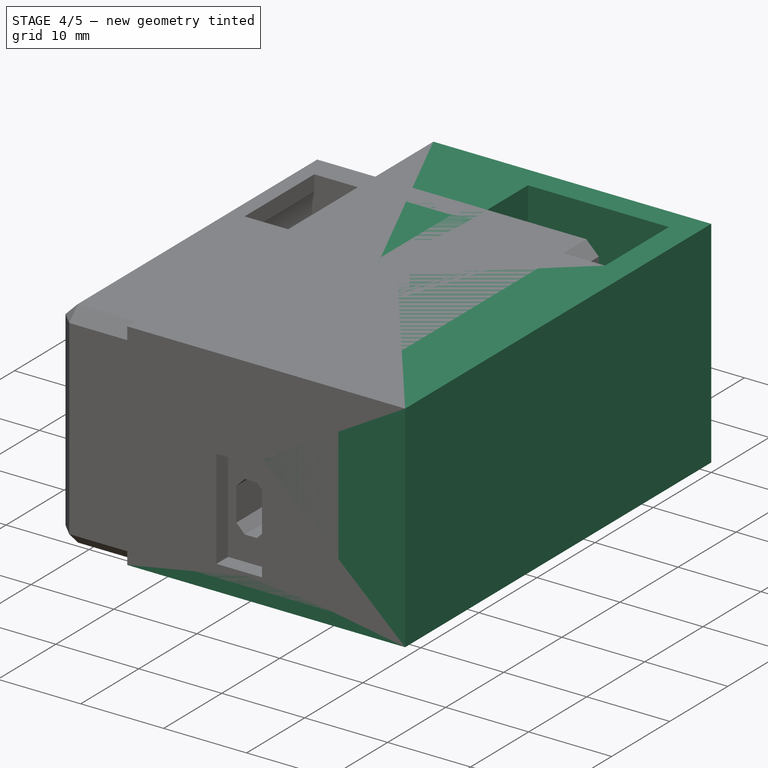
[diagram: stage 4 of 5 — iso view after this stage's code; geometry added in this stage tinted green]
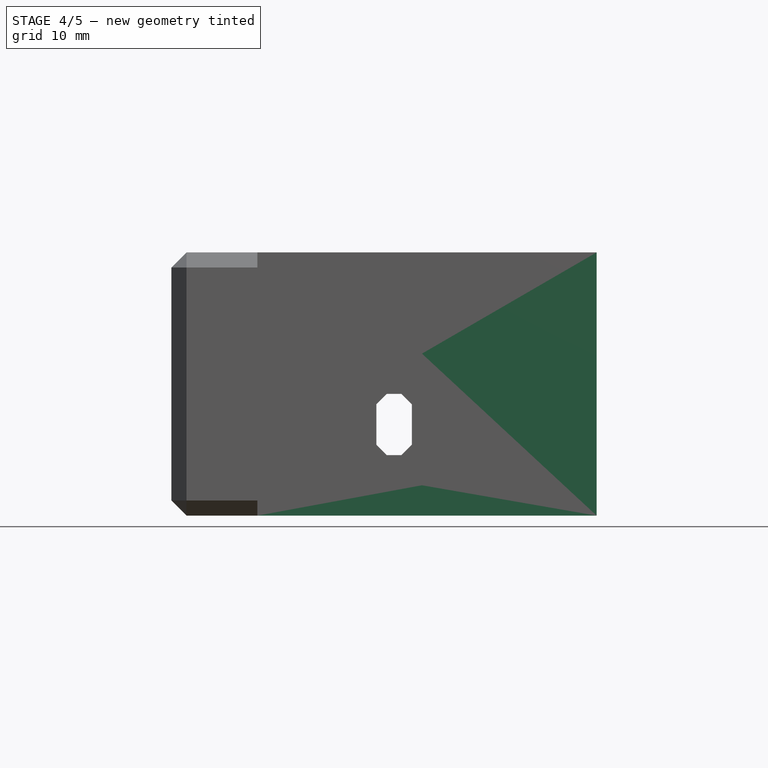
[diagram: stage 4 of 5 — front view after this stage's code; geometry added in this stage tinted green]
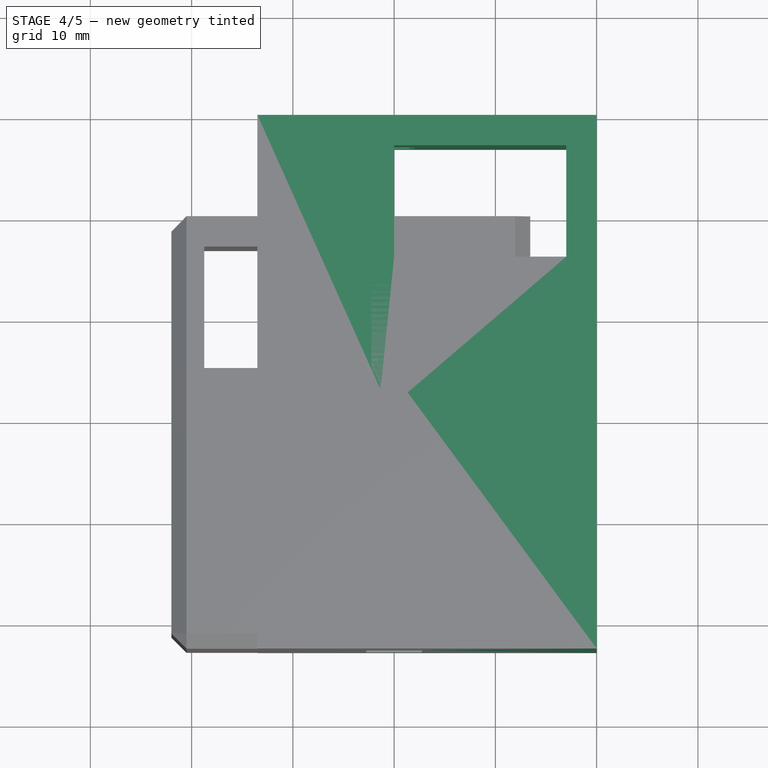
[diagram: stage 4 of 5 — top view after this stage's code; geometry added in this stage tinted green]
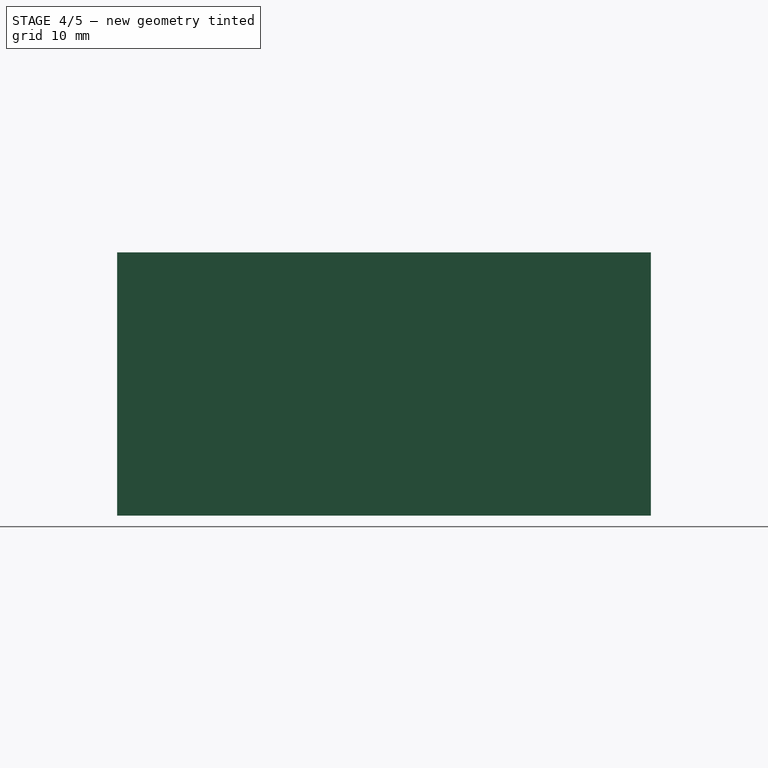
[diagram: stage 4 of 5 — right view after this stage's code; geometry added in this stage tinted green]
FEATURE [Sketcher::SketchObject] Sketch017
  FullyConstrained = false
  MapMode = 5
  Placement = pos=(0,0,-8) rot=(1,0,0;3.14159rad)
  sketch-geometry (4):
    g0: LineSegment StartX=8 StartY=-8.22476 StartZ=0 EndX=18.4063 EndY=-8.22476 EndZ=0
    g1: LineSegment StartX=18.4063 StartY=-8.22476 StartZ=0 EndX=18.4063 EndY=-17 EndZ=0
    g2: LineSegment StartX=18.4063 StartY=-17 StartZ=0 EndX=8 EndY=-17 EndZ=0
    g3: LineSegment StartX=8 StartY=-17 StartZ=0 EndX=8 EndY=-8.22476 EndZ=0
  constraints (10):
    c: Coincident(g0,g1)
    c: Coincident(g1,g2)
    c: Coincident(g2,g3)
    c: Coincident(g3,g0)
    c: Horizontal(g0)
    c: Horizontal(g2)
    c: Vertical(g1)
    c: Vertical(g3)
    c: DistanceX(g2) = 8
    c: DistanceY(g2) = -17
FEATURE [PartDesign::Pocket] Pocket012
  BaseFeature = -> Pocket002
  Length = 5
  Length2 = 100
  Profile = -> Sketch007
  Type = 1
FEATURE [Sketcher::SketchObject] Sketch018
  FullyConstrained = true
  MapMode = 5
  Placement = pos=(0,-12.7,0) rot=(1,0,0;1.5708rad)
  Support = -> [Pocket012]
  sketch-geometry (4):
    g0: LineSegment StartX=-2.75 StartY=-10 StartZ=0 EndX=2.75 EndY=-10 EndZ=0
    g1: LineSegment StartX=2.75 StartY=-10 StartZ=0 EndX=2.75 EndY=-23 EndZ=0
    g2: LineSegment StartX=2.75 StartY=-23 StartZ=0 EndX=-2.75 EndY=-23 EndZ=0
    g3: LineSegment StartX=-2.75 StartY=-23 StartZ=0 EndX=-2.75 EndY=-10 EndZ=0
  constraints (11):
    c: Coincident(g0,g1)
    c: Coincident(g1,g2)
    c: Coincident(g2,g3)
    c: Coincident(g3,g0)
    c: Horizontal(g0)
    c: Vertical(g1)
    c: Vertical(g3)
    c: Distance(g2) = 5.5
    c: Symmetric(g1,g2,g-2)
    c: DistanceY(g1) = -23
    c: DistanceY(g0) = -10
FEATURE [PartDesign::Pocket] Pocket013
  BaseFeature = -> Pocket012
  Length = 2
  Length2 = 100
  Profile = -> Sketch018
  Type = 0
FEATURE [Sketcher::SketchObject] Sketch019
  FullyConstrained = true
  MapMode = 5
  Placement = pos=(0,40,0) rot=(0,0.707107,0.707107;3.14159rad)
  Support = -> [Pocket013]
  sketch-geometry (8):
    g0: LineSegment StartX=-1.5 StartY=-12 StartZ=0 EndX=1.5 EndY=-12 EndZ=0
    g1: LineSegment StartX=1.5 StartY=-12 StartZ=0 EndX=2 EndY=-12.5 EndZ=0
    g2: LineSegment StartX=2 StartY=-12.5 StartZ=0 EndX=2 EndY=-21.5 EndZ=0
    g3: LineSegment StartX=2 StartY=-21.5 StartZ=0 EndX=1.5 EndY=-22 EndZ=0
    g4: LineSegment StartX=1.5 StartY=-22 StartZ=0 EndX=-1.5 EndY=-22 EndZ=0
    g5: LineSegment StartX=-1.5 StartY=-22 StartZ=0 EndX=-2 EndY=-21.5 EndZ=0
    g6: LineSegment StartX=-2 StartY=-21.5 StartZ=0 EndX=-2 EndY=-12.5 EndZ=0
    g7: LineSegment StartX=-2 StartY=-12.5 StartZ=0 EndX=-1.5 EndY=-12 EndZ=0
  constraints (22):
    c: Coincident(g0,g1)
    c: Coincident(g1,g2)
    c: Vertical(g2)
    c: Coincident(g2,g3)
    c: Coincident(g3,g4)
    c: Coincident(g4,g5)
    c: Coincident(g5,g6)
    c: Vertical(g6)
    c: Coincident(g6,g7)
    c: Coincident(g7,g0)
    c: Equal(g1,g7)
    c: Equal(g7,g5)
    c: Equal(g5,g3)
    c: Equal(g0,g4)
    c: Equal(g2,g6)
    c: Symmetric(g0,g0,g-2)
    c: Angle(g1) = -0.785398
    c: Symmetric(g3,g4,g-2)
    c: Distance(g2,g5) = 4
    c: Distance(g3,g0) = 10
    c: DistanceY(g0) = -12
    c: Distance(g4) = 3
FEATURE [PartDesign::Pocket] Pocket014
  BaseFeature = -> Pocket013
  Length = 5
  Length2 = 100
  Profile = -> Sketch019
  Type = 0
FEATURE [PartDesign::Pocket] Pocket015
  BaseFeature = -> Pocket014
  Length = 5
  Length2 = 100
  Profile = -> Sketch006
  Type = 1
FEATURE [PartDesign::Body] Body  label="XTensioner"
  Group = -> [Sketch,Sketch001,Pad,Sketch002,Sketch003,Sketch004,Sketch005,Sketch006,Sketch007,Pocket,Pocket001,Pocket002,Sketch017,Pocket012,Sketch018,Pocket013,Sketch019,Pocket014,Pocket015,Pocket016,Pad003,Chamfer,Chamfer004,Sketch023,Pocket020,Sketch024,Pad005]
  Origin = -> Origin
  Tip = -> Pad005
FEATURE [Sketcher::SketchObject] Sketch025
  FullyConstrained = false
  MapMode = 5
  Support = -> [Pocket019]
  sketch-geometry (1):
    g0: Circle CenterX=0 CenterY=4.00953 CenterZ=0 NormalX=0 NormalY=0 NormalZ=1 AngleXU=0 Radius=3.5
  constraints (2):
    c: PointOnObject(g0,g-2)
    c: Diameter(g0) = 7
FEATURE [PartDesign::Pocket] Pocket021
  BaseFeature = -> Pocket019
  Length = 3
  Length2 = 100
  Profile = -> Sketch025
  Type = 0
FEATURE [Sketcher::SketchObject] Sketch026
  FullyConstrained = false
  MapMode = 5
  Placement = pos=(0,0,-3) rot=(0,0,1;0rad)
  Support = -> [Pocket021]
  sketch-geometry (1):
    g0: Circle CenterX=0 CenterY=3.8723 CenterZ=0 NormalX=0 NormalY=0 NormalZ=1 AngleXU=0 Radius=2.07685
  constraints (1):
    c: PointOnObject(g0,g-2)
FEATURE [PartDesign::Pad] Pad006
  BaseFeature = -> Pocket021
  Direction = (1,1,1)
  Length = 0.3
  Length2 = 100
  Profile = -> Sketch026
  Reversed = true
  Type = 0
FEATURE [PartDesign::Body] Body002  label="Y_tensioner"
  Group = -> [Sketch009,Sketch012,Pad001,Sketch013,Sketch008,Sketch014,Sketch010,Sketch011,Sketch015,Pocket006,Pocket007,Pocket008,Pocket009,Pocket010,Pocket011,Sketch016,Sketch020,Pocket017,Sketch021,Pad004,Pocket018,Chamfer002,Chamfer003,Sketch022,Pocket019,Sketch025,Pocket021,Sketch026,Pad006]
  Origin = -> Origin002
  Tip = -> Pad006
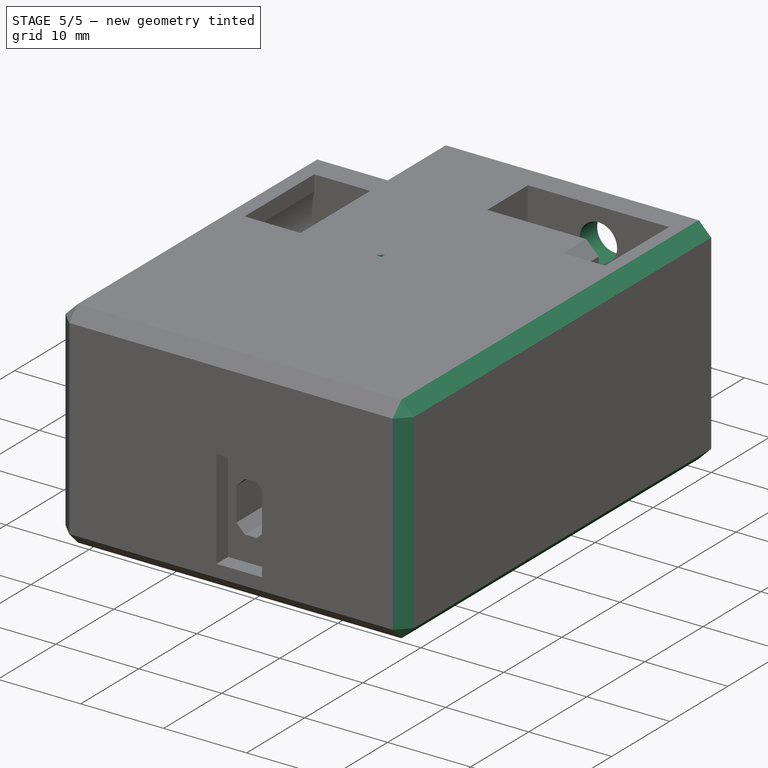
[diagram: stage 5 of 5 — iso view after this stage's code; geometry added in this stage tinted green]
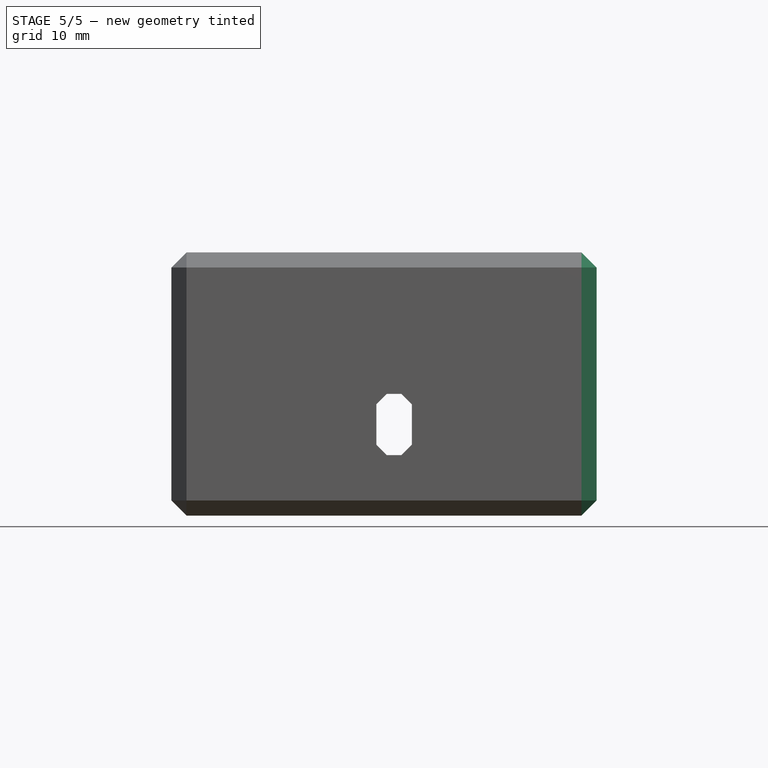
[diagram: stage 5 of 5 — front view after this stage's code; geometry added in this stage tinted green]
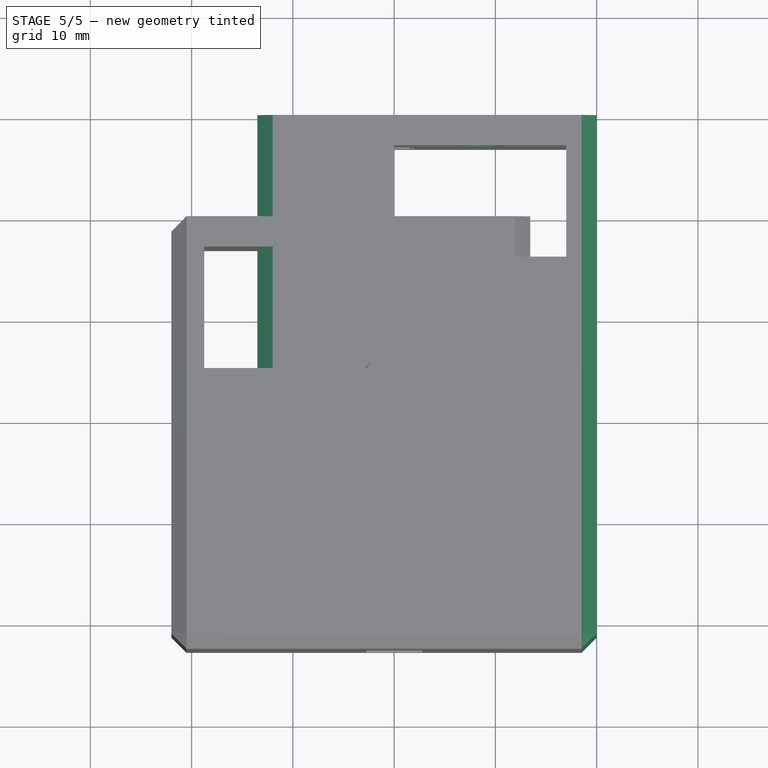
[diagram: stage 5 of 5 — top view after this stage's code; geometry added in this stage tinted green]
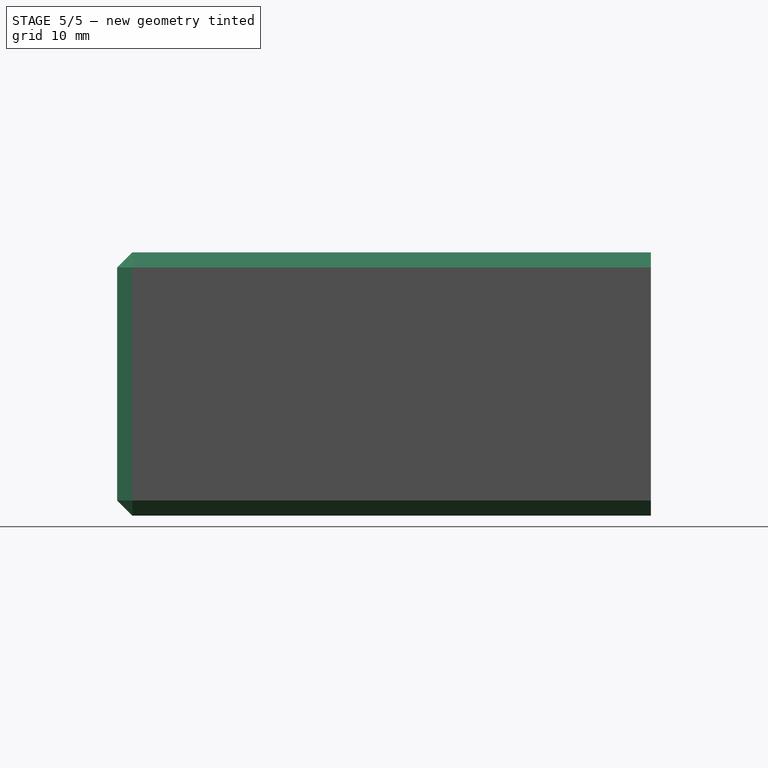
[diagram: stage 5 of 5 — right view after this stage's code; geometry added in this stage tinted green]
FEATURE [PartDesign::Pocket] Pocket016
  BaseFeature = -> Pocket015
  Length = 22
  Length2 = 100
  Profile = -> Sketch005
  Type = 0
FEATURE [PartDesign::Pad] Pad003
  BaseFeature = -> Pocket016
  Direction = (1,1,1)
  Length = 8
  Length2 = 100
  Profile = -> Sketch017
  Type = 0
FEATURE [PartDesign::Chamfer] Chamfer
  Angle = 45
  Base = -> Pad003 [Edge14]
  BaseFeature = -> Pad003
  ChamferType = 0
  FlipDirection = false
  Size = 7
  Size2 = 1
  SupportTransform = false
FEATURE [PartDesign::Chamfer] Chamfer004
  Angle = 45
  Base = -> Chamfer [Edge62,Edge56,Edge45,Edge46,Edge54,Edge7,Edge8,Edge6]
  BaseFeature = -> Chamfer
  ChamferType = 0
  FlipDirection = false
  Size = 1.5
  Size2 = 1
  SupportTransform = false
FEATURE [Sketcher::SketchObject] Sketch023
  FullyConstrained = false
  MapMode = 5
  Support = -> [Chamfer004]
  sketch-geometry (1):
    g0: Circle CenterX=0 CenterY=12.975 CenterZ=0 NormalX=0 NormalY=0 NormalZ=1 AngleXU=0 Radius=3.5
  constraints (2):
    c: PointOnObject(g0,g-2)
    c: Diameter(g0) = 7
FEATURE [PartDesign::Pocket] Pocket020
  BaseFeature = -> Chamfer004
  Length = 3
  Length2 = 100
  Profile = -> Sketch023
  Type = 0
FEATURE [Sketcher::SketchObject] Sketch024
  FullyConstrained = false
  MapMode = 5
  Placement = pos=(0,0,-3) rot=(0,0,1;0rad)
  Support = -> [Pocket020]
  sketch-geometry (1):
    g0: Circle CenterX=0 CenterY=13.0897 CenterZ=0 NormalX=0 NormalY=0 NormalZ=1 AngleXU=0 Radius=1.75201
  constraints (1):
    c: PointOnObject(g0,g-2)
FEATURE [PartDesign::Pad] Pad005
  BaseFeature = -> Pocket020
  Direction = (1,1,1)
  Length = 0.3
  Length2 = 100
  Profile = -> Sketch024
  Reversed = true
  Type = 0
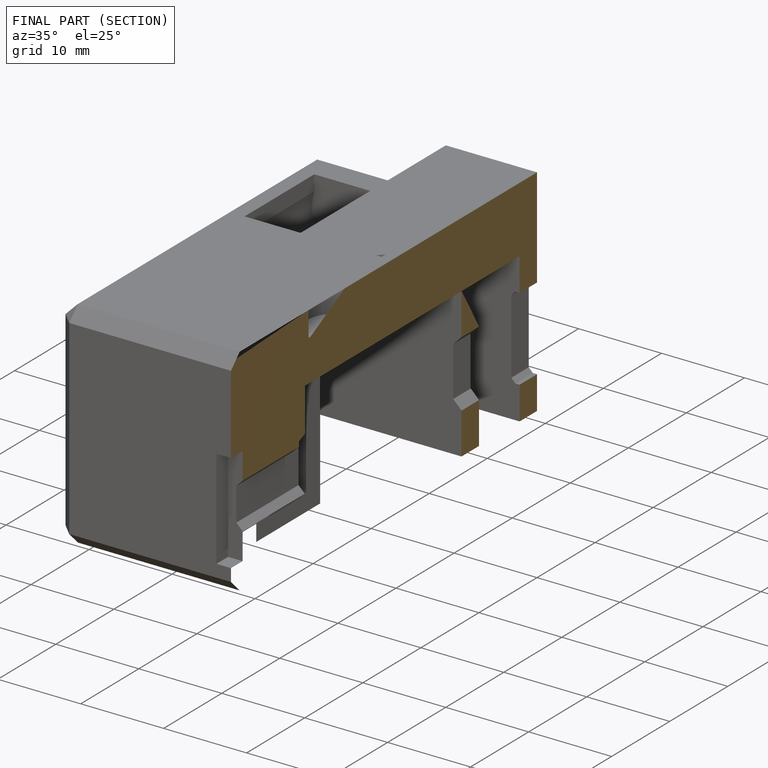
[diagram: finished part — half-section view (interior)]
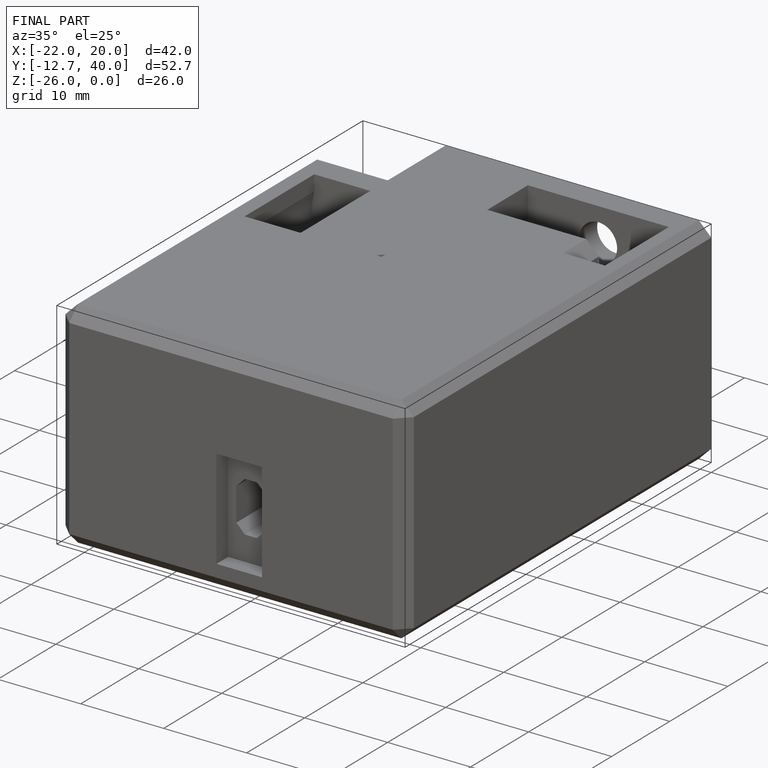
[diagram: finished part — iso view with bounding-box wireframe]
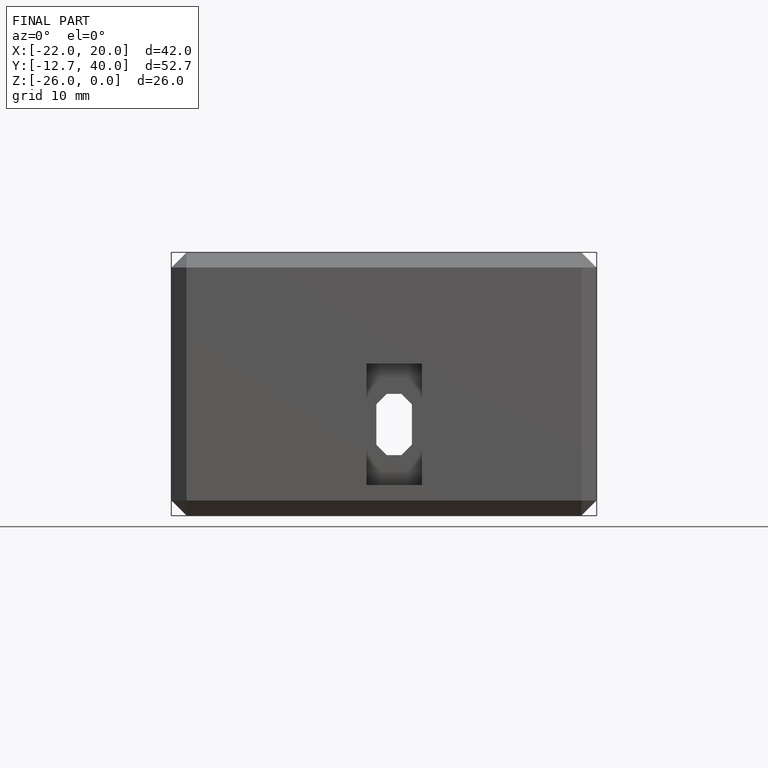
[diagram: finished part — front view with bounding-box wireframe]
